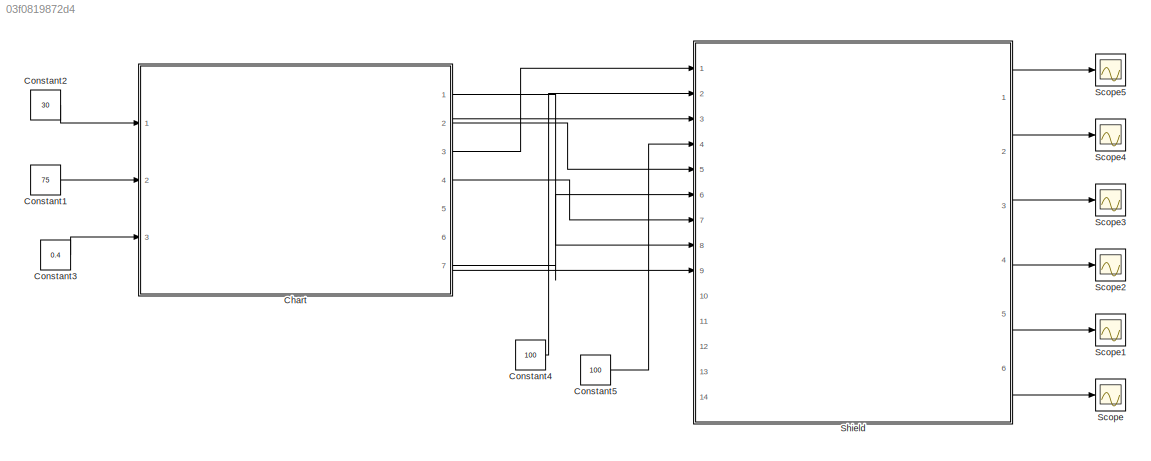
MODEL slx_03f0819872d4
KIND model
CONFIG AbsTol = auto
CONFIG EnableMultiTasking = on
CONFIG FixedStep = 1e-4
CONFIG MaxStep = auto
CONFIG MinStep = auto
CONFIG RelTol = 1e-3
CONFIG SampleTimeConstraint = Unconstrained
CONFIG SolverName = FixedStepAuto
CONFIG StartTime = 0.0
CONFIG StopTime = 6.5
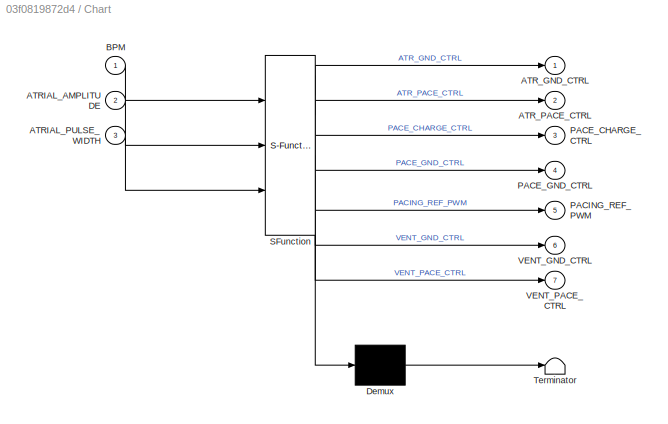
BLOCK [SubSystem] Chart
  ErrorFcn = Stateflow.Translate.translate
  PermitHierarchicalResolution = ExplicitOnly
  PortSchema = {"entries":[{"content":{"sides":[{"content":{"connectorIds":["In1","In2","In3"]},"type":"ConnectorPlacement.EquallySpacedRectSide","uuid":"a22e05d8-b46e-41db-a99f-a3bab389e16c"},{"content":{"connectorIds":["Out3","Out5","Out2","Out7","Out4","Out1","Out6"],"side":"RIGHT"},"type":"ConnectorPlacement.EquallySpacedRectSide","uuid":"b830ec1d-656a-4b92-afcd-8fda6b31ad8a"},{"content":{"connectorIds":[],"...<+294ch>
  Ports = [3, 7]
  RequestExecContextInheritance = off
  SFBlockType = Chart
  TreatAsAtomicUnit = on
BLOCK [Demux] Chart/ Demux 
  Outputs = 1
  Ports = [1, 1]
BLOCK [S-Function] Chart/ SFunction 
  EnableBusSupport = on
  FunctionName = sf_sfun
  PortCounts = [3 8]
  Ports = [3, 8]
  SFcnIsStateOwnerBlock = off
  SFunctionDeploymentMode = off
  Tag = Stateflow S-Function 3
BLOCK [Terminator] Chart/ Terminator 
BLOCK [Inport] Chart/ATRIAL_AMPLITUDE
  Port = 2
BLOCK [Inport] Chart/ATRIAL_PULSE_WIDTH
  Port = 3
BLOCK [Outport] Chart/ATR_GND_CTRL
BLOCK [Outport] Chart/ATR_PACE_CTRL
  Port = 2
BLOCK [Inport] Chart/BPM
BLOCK [Outport] Chart/PACE_CHARGE_CTRL
  Port = 3
BLOCK [Outport] Chart/PACE_GND_CTRL
  Port = 4
BLOCK [Outport] Chart/PACING_REF_PWM
  Port = 5
BLOCK [Outport] Chart/VENT_GND_CTRL
  Port = 6
BLOCK [Outport] Chart/VENT_PACE_CTRL
  Port = 7
BLOCK [Constant] Constant1
  Value = 75
BLOCK [Constant] Constant2
  Value = 30
BLOCK [Constant] Constant3
  Value = 0.4
BLOCK [Constant] Constant4
  Value = 100
BLOCK [Constant] Constant5
  Value = 100
BLOCK [Scope] Scope
  Floating = off
  NumInputPorts = 1
  Ports = [1]
  ScopeSpecificationString = Simulink.scopes.TimeScopeBlockCfg('CurrentConfiguration', extmgr.ConfigurationSet(extmgr.Configuration('Core','General UI',true),extmgr.Configuration('Core','Source UI',true),extmgr.Configuration('Sources','WiredSimulink',true),extmgr.Configuration('Visuals','Time Domain',true,'SerializedDisplays',{struct('MinYLimReal','-1.52344','MaxYLimReal','4.33594','YLabelReal','','MinYLimMag','0.00000','MaxY...<+1476ch>
BLOCK [Scope] Scope1
  Floating = off
  NumInputPorts = 1
  Ports = [1]
  ScopeSpecificationString = Simulink.scopes.TimeScopeBlockCfg('CurrentConfiguration', extmgr.ConfigurationSet(extmgr.Configuration('Core','General UI',true),extmgr.Configuration('Core','Source UI',true),extmgr.Configuration('Sources','WiredSimulink',true,'DataLoggingVariableName','ScopeData1'),extmgr.Configuration('Visuals','Time Domain',true,'SerializedDisplays',{struct('MinYLimReal','-1.00000','MaxYLimReal','1.00000','YLab...<+1379ch>
BLOCK [Scope] Scope2
  Floating = off
  NumInputPorts = 1
  Ports = [1]
  ScopeSpecificationString = Simulink.scopes.TimeScopeBlockCfg('CurrentConfiguration', extmgr.ConfigurationSet(extmgr.Configuration('Core','General UI',true),extmgr.Configuration('Core','Source UI',true),extmgr.Configuration('Sources','WiredSimulink',true,'DataLoggingVariableName','ScopeData2'),extmgr.Configuration('Visuals','Time Domain',true,'SerializedDisplays',{struct('MinYLimReal','-0.4125','MaxYLimReal','3.7125','YLabel...<+1371ch>
BLOCK [Scope] Scope3
  Floating = off
  NumInputPorts = 1
  Ports = [1]
  ScopeSpecificationString = Simulink.scopes.TimeScopeBlockCfg('CurrentConfiguration', extmgr.ConfigurationSet(extmgr.Configuration('Core','General UI',true),extmgr.Configuration('Core','Source UI',true),extmgr.Configuration('Sources','WiredSimulink',true,'DataLoggingVariableName','ScopeData3'),extmgr.Configuration('Visuals','Time Domain',true,'SerializedDisplays',{struct('MinYLimReal','-0.4125','MaxYLimReal','3.7125','YLabel...<+1372ch>
BLOCK [Scope] Scope4
  Floating = off
  NumInputPorts = 1
  Ports = [1]
  ScopeSpecificationString = Simulink.scopes.TimeScopeBlockCfg('CurrentConfiguration', extmgr.ConfigurationSet(extmgr.Configuration('Core','General UI',true),extmgr.Configuration('Core','Source UI',true),extmgr.Configuration('Sources','WiredSimulink',true,'DataLoggingVariableName','ScopeData4'),extmgr.Configuration('Visuals','Time Domain',true,'SerializedDisplays',{struct('MinYLimReal','-1.00000','MaxYLimReal','1.00000','YLab...<+1367ch>
BLOCK [Scope] Scope5
  Floating = off
  NumInputPorts = 1
  Ports = [1]
  ScopeSpecificationString = Simulink.scopes.TimeScopeBlockCfg('CurrentConfiguration', extmgr.ConfigurationSet(extmgr.Configuration('Core','General UI',true),extmgr.Configuration('Core','Source UI',true),extmgr.Configuration('Sources','WiredSimulink',true,'DataLoggingVariableName','ScopeData5'),extmgr.Configuration('Visuals','Time Domain',true,'SerializedDisplays',{struct('MinYLimReal','-1.00000','MaxYLimReal','1.00000','YLab...<+1367ch>
BLOCK [ModelReference] Shield
  CopyOfModelProtected = on
  ModelNameDialog = Shield_Model.slxp
  ModelReferenceVersion = 1.25
  Ports = [14, 6]
LINE Chart:1 -> Shield:8
LINE Chart:2 -> Shield:5
LINE Chart:3 -> Shield:1
LINE Chart:4 -> Shield:7
LINE Chart:5 -> Shield:3
LINE Chart:6 -> Shield:9
LINE Chart:7 -> Shield:6
LINE Constant1:1 -> Chart:2
LINE Constant2:1 -> Chart:1
LINE Constant3:1 -> Chart:3
LINE Constant4:1 -> Shield:2
LINE Constant5:1 -> Shield:4
LINE Shield:1 -> Scope5:1
LINE Shield:2 -> Scope4:1
LINE Shield:3 -> Scope3:1
LINE Shield:4 -> Scope2:1
LINE Shield:5 -> Scope1:1
LINE Shield:6 -> Scope:1
CHART Chart states=3 transitions=4
  STATE_LABEL 'PACE_ATR\nentry:\nPACE_CHARGE_CTRL = 0;\nPACE_GND_CTRL = 1;\nVENT_GND_CTRL = 0;\nVENT_PACE_CTRL = 0;\nZ_ATR_CTRL = 0;\nZ_VENT_CTRL = 0;\nATR_GND_CTRL = 0;\nATR_PACE_CTRL = 1;\n'
  STATE_LABEL 'C22_CHARGE\nentry:\nATR_PACE_CTRL = 0;\nVENT_PACE_CTRL = 0;\nPACING_REF_PWM = ATRIAL_AMPLITUDE;\nPACE_CHARGE_CTRL = 1;'
  STATE_LABEL 'C21_DISCHARGE\nentry:\nPACE_GND_CTRL = 1;\nVENT_PACE_CTRL = 0;\nZ_ATR_CTRL = 0;\nZ_VENT_CTRL = 0;\nATR_PACE_CTRL = 0;\nATR_GND_CTRL = 1;\nVENT_GND_CTRL = 0;'
CHART  states=0 transitions=0
